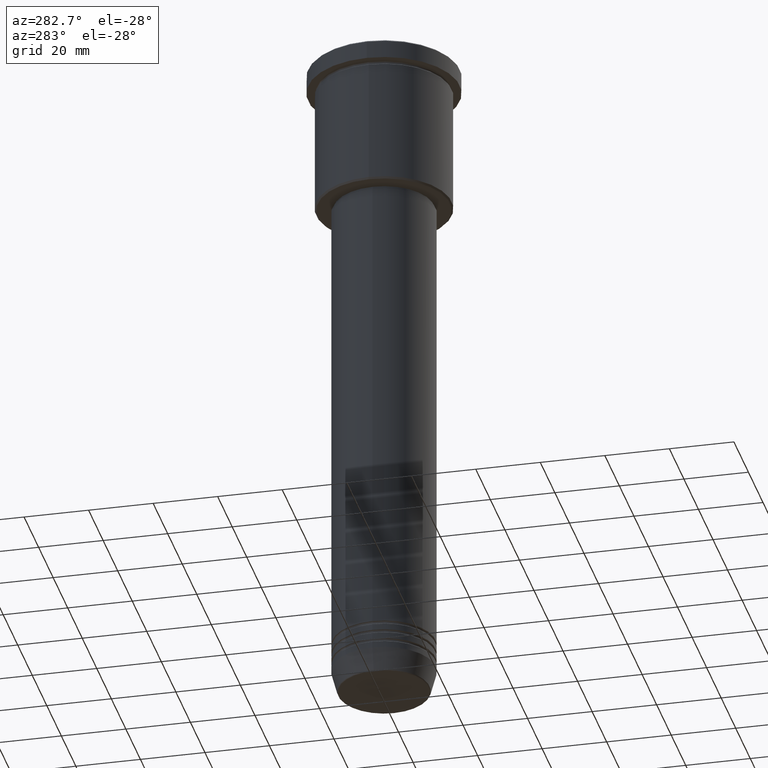
[diagram: clean part render]
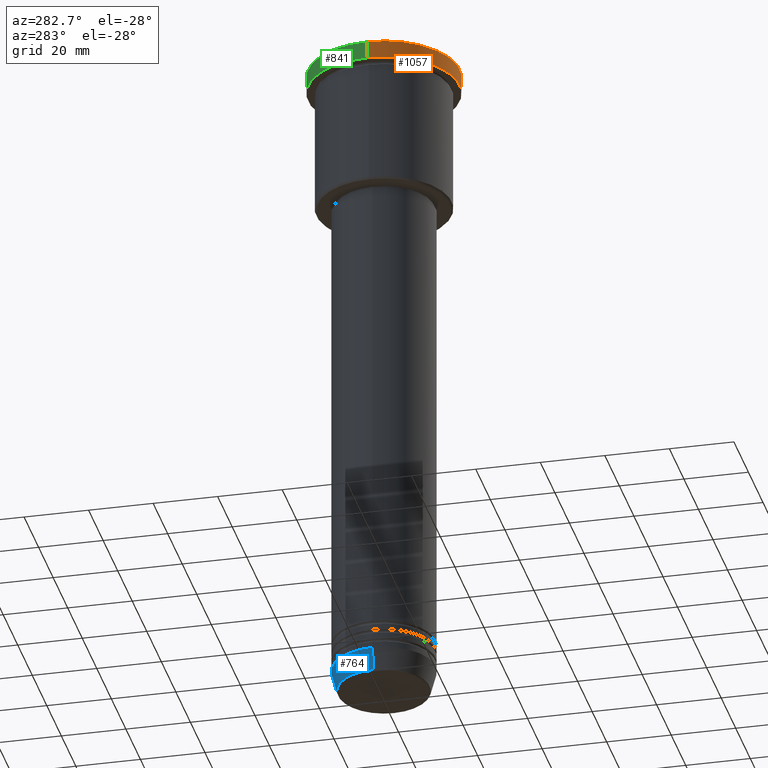
[diagram: same view with three faces highlighted in distinct colors, each labeled with its STEP entity id]
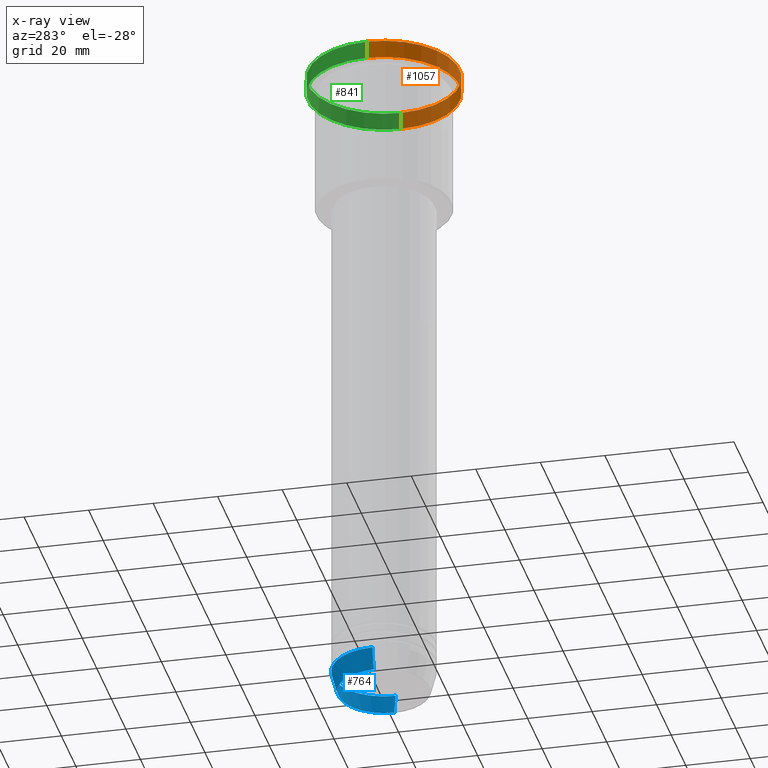
[diagram: x-ray of the same camera — body ghosted, the three highlighted faces saturated]
A machine part, auxiliary view with three faces highlighted in distinct colors.
The next image is the same camera in x-ray (body ghosted, the three faces saturated) — at least one of them is partly hidden behind the body in this view.
Their STEP definitions:

[orange] entity #1057 — the highlighted cylindrical surface (partial cylindrical patch) has radius 23.5 mm, axis along (-0, -0, 1).
#41 = DIRECTION ( 'NONE',  ( 0.000000000000000000, 0.000000000000000000, -1.000000000000000000 ) ) ;
#78 = DIRECTION ( 'NONE',  ( -0.000000000000000000, -0.000000000000000000, 1.000000000000000000 ) ) ;
#95 = CARTESIAN_POINT ( 'NONE',  ( 0.000000000000000000, 0.000000000000000000, -5.999999999999994671 ) ) ;
#121 = VECTOR ( 'NONE', #978, 1000.000000000000000 ) ;
#160 = CARTESIAN_POINT ( 'NONE',  ( 23.50000000000000000, 0.000000000000000000, -0.5000000000000004441 ) ) ;
#196 = AXIS2_PLACEMENT_3D ( 'NONE', #528, #78, #1181 ) ;
#224 = VERTEX_POINT ( 'NONE', #160 ) ;
#237 = CARTESIAN_POINT ( 'NONE',  ( -23.50000000000000000, 2.877919977996280320E-15, -0.5000000000000004441 ) ) ;
#267 = VERTEX_POINT ( 'NONE', #237 ) ;
#337 = CYLINDRICAL_SURFACE ( 'NONE', #196, 23.50000000000000000 ) ;
#343 = CIRCLE ( 'NONE', #494, 23.50000000000000000 ) ;
#352 = CARTESIAN_POINT ( 'NONE',  ( -23.50000000000000000, 2.877919977996280320E-15, 0.000000000000000000 ) ) ;
#410 = CARTESIAN_POINT ( 'NONE',  ( 23.50000000000000000, 0.000000000000000000, -5.999999999999994671 ) ) ;
#418 = VECTOR ( 'NONE', #537, 1000.000000000000000 ) ;
#494 = AXIS2_PLACEMENT_3D ( 'NONE', #856, #41, #1131 ) ;
#528 = CARTESIAN_POINT ( 'NONE',  ( 0.000000000000000000, 0.000000000000000000, 0.000000000000000000 ) ) ;
#537 = DIRECTION ( 'NONE',  ( -0.000000000000000000, -0.000000000000000000, 1.000000000000000000 ) ) ;
#601 = VERTEX_POINT ( 'NONE', #410 ) ;
#606 = LINE ( 'NONE', #352, #121 ) ;
#612 = EDGE_LOOP ( 'NONE', ( #709, #812, #917, #1107 ) ) ;
#623 = FACE_OUTER_BOUND ( 'NONE', #612, .T. ) ;
#652 = CIRCLE ( 'NONE', #954, 23.50000000000000000 ) ;
#677 = EDGE_CURVE ( 'NONE', #1139, #267, #606, .T. ) ;
#709 = ORIENTED_EDGE ( 'NONE', *, *, #677, .F. ) ;
#713 = LINE ( 'NONE', #720, #418 ) ;
#720 = CARTESIAN_POINT ( 'NONE',  ( 23.50000000000000000, 0.000000000000000000, 0.000000000000000000 ) ) ;
#812 = ORIENTED_EDGE ( 'NONE', *, *, #848, .T. ) ;
#819 = DIRECTION ( 'NONE',  ( -0.000000000000000000, -0.000000000000000000, 1.000000000000000000 ) ) ;
#848 = EDGE_CURVE ( 'NONE', #1139, #601, #652, .T. ) ;
#856 = CARTESIAN_POINT ( 'NONE',  ( 0.000000000000000000, 0.000000000000000000, -0.5000000000000004441 ) ) ;
#915 = EDGE_CURVE ( 'NONE', #224, #267, #343, .T. ) ;
#917 = ORIENTED_EDGE ( 'NONE', *, *, #1045, .T. ) ;
#918 = DIRECTION ( 'NONE',  ( 1.000000000000000000, 0.000000000000000000, 0.000000000000000000 ) ) ;
#954 = AXIS2_PLACEMENT_3D ( 'NONE', #95, #819, #918 ) ;
#978 = DIRECTION ( 'NONE',  ( -0.000000000000000000, -0.000000000000000000, 1.000000000000000000 ) ) ;
#1045 = EDGE_CURVE ( 'NONE', #601, #224, #713, .T. ) ;
#1057 = ADVANCED_FACE ( 'NONE', ( #623 ), #337, .T. ) ;
#1070 = CARTESIAN_POINT ( 'NONE',  ( -23.50000000000000000, 2.877919977996280320E-15, -5.999999999999994671 ) ) ;
#1107 = ORIENTED_EDGE ( 'NONE', *, *, #915, .T. ) ;
#1131 = DIRECTION ( 'NONE',  ( 1.000000000000000000, 0.000000000000000000, 0.000000000000000000 ) ) ;
#1139 = VERTEX_POINT ( 'NONE', #1070 ) ;
#1181 = DIRECTION ( 'NONE',  ( 1.000000000000000000, 0.000000000000000000, 0.000000000000000000 ) ) ;

[blue] entity #764 — the highlighted conical surface has half-angle 15 deg.
#8 = VERTEX_POINT ( 'NONE', #829 ) ;
#21 = DIRECTION ( 'NONE',  ( 1.000000000000000000, 0.000000000000000000, 0.000000000000000000 ) ) ;
#43 = VERTEX_POINT ( 'NONE', #556 ) ;
#162 = DIRECTION ( 'NONE',  ( -0.2588190451025209615, 3.169619151431767406E-17, 0.9659258262890682012 ) ) ;
#175 = AXIS2_PLACEMENT_3D ( 'NONE', #1099, #351, #553 ) ;
#263 = DIRECTION ( 'NONE',  ( 1.000000000000000000, 0.000000000000000000, 0.000000000000000000 ) ) ;
#264 = VECTOR ( 'NONE', #162, 1000.000000000000000 ) ;
#274 = CARTESIAN_POINT ( 'NONE',  ( 16.00000000000000000, 0.000000000000000000, -204.0000000000000284 ) ) ;
#293 = LINE ( 'NONE', #274, #654 ) ;
#332 = EDGE_LOOP ( 'NONE', ( #925, #643, #1037, #501 ) ) ;
#340 = CARTESIAN_POINT ( 'NONE',  ( 14.22365507213720193, 0.000000000000000000, -210.6294095225512706 ) ) ;
#351 = DIRECTION ( 'NONE',  ( -0.000000000000000000, -0.000000000000000000, 1.000000000000000000 ) ) ;
#398 = CONICAL_SURFACE ( 'NONE', #806, 16.00000000000000000, 0.2617993877991496299 ) ;
#414 = VERTEX_POINT ( 'NONE', #340 ) ;
#417 = AXIS2_PLACEMENT_3D ( 'NONE', #466, #844, #21 ) ;
#466 = CARTESIAN_POINT ( 'NONE',  ( 0.000000000000000000, 0.000000000000000000, -204.0000000000000284 ) ) ;
#492 = CIRCLE ( 'NONE', #175, 14.22365507213720193 ) ;
#501 = ORIENTED_EDGE ( 'NONE', *, *, #1038, .F. ) ;
#553 = DIRECTION ( 'NONE',  ( 1.000000000000000000, 0.000000000000000000, 0.000000000000000000 ) ) ;
#556 = CARTESIAN_POINT ( 'NONE',  ( 16.00000000000000000, 0.000000000000000000, -204.0000000000000284 ) ) ;
#643 = ORIENTED_EDGE ( 'NONE', *, *, #963, .T. ) ;
#647 = DIRECTION ( 'NONE',  ( 0.2588190451025209615, 0.000000000000000000, 0.9659258262890682012 ) ) ;
#654 = VECTOR ( 'NONE', #647, 1000.000000000000000 ) ;
#725 = CARTESIAN_POINT ( 'NONE',  ( 0.000000000000000000, 0.000000000000000000, -204.0000000000000284 ) ) ;
#764 = ADVANCED_FACE ( 'NONE', ( #1157 ), #398, .T. ) ;
#806 = AXIS2_PLACEMENT_3D ( 'NONE', #725, #1084, #263 ) ;
#829 = CARTESIAN_POINT ( 'NONE',  ( -14.22365507213720193, 1.850665122131324126E-15, -210.6294095225512706 ) ) ;
#834 = EDGE_CURVE ( 'NONE', #414, #8, #492, .T. ) ;
#844 = DIRECTION ( 'NONE',  ( -0.000000000000000000, -0.000000000000000000, 1.000000000000000000 ) ) ;
#895 = EDGE_CURVE ( 'NONE', #43, #965, #1141, .T. ) ;
#925 = ORIENTED_EDGE ( 'NONE', *, *, #834, .T. ) ;
#963 = EDGE_CURVE ( 'NONE', #8, #965, #1145, .T. ) ;
#965 = VERTEX_POINT ( 'NONE', #1168 ) ;
#1037 = ORIENTED_EDGE ( 'NONE', *, *, #895, .F. ) ;
#1038 = EDGE_CURVE ( 'NONE', #414, #43, #293, .T. ) ;
#1084 = DIRECTION ( 'NONE',  ( -0.000000000000000000, -0.000000000000000000, 1.000000000000000000 ) ) ;
#1099 = CARTESIAN_POINT ( 'NONE',  ( 0.000000000000000000, 0.000000000000000000, -210.6294095225512706 ) ) ;
#1141 = CIRCLE ( 'NONE', #417, 16.00000000000000000 ) ;
#1145 = LINE ( 'NONE', #1158, #264 ) ;
#1157 = FACE_OUTER_BOUND ( 'NONE', #332, .T. ) ;
#1158 = CARTESIAN_POINT ( 'NONE',  ( -16.00000000000000000, 1.959434878635765131E-15, -204.0000000000000284 ) ) ;
#1168 = CARTESIAN_POINT ( 'NONE',  ( -16.00000000000000000, 1.959434878635765131E-15, -204.0000000000000284 ) ) ;

[green] entity #841 — the highlighted cylindrical surface (partial cylindrical patch) has radius 23.5 mm, axis along (-0, -0, 1).
#121 = VECTOR ( 'NONE', #978, 1000.000000000000000 ) ;
#160 = CARTESIAN_POINT ( 'NONE',  ( 23.50000000000000000, 0.000000000000000000, -0.5000000000000004441 ) ) ;
#177 = DIRECTION ( 'NONE',  ( 1.000000000000000000, 0.000000000000000000, 0.000000000000000000 ) ) ;
#190 = EDGE_CURVE ( 'NONE', #601, #1139, #863, .T. ) ;
#224 = VERTEX_POINT ( 'NONE', #160 ) ;
#237 = CARTESIAN_POINT ( 'NONE',  ( -23.50000000000000000, 2.877919977996280320E-15, -0.5000000000000004441 ) ) ;
#241 = CARTESIAN_POINT ( 'NONE',  ( 0.000000000000000000, 0.000000000000000000, -5.999999999999994671 ) ) ;
#267 = VERTEX_POINT ( 'NONE', #237 ) ;
#281 = AXIS2_PLACEMENT_3D ( 'NONE', #451, #718, #177 ) ;
#352 = CARTESIAN_POINT ( 'NONE',  ( -23.50000000000000000, 2.877919977996280320E-15, 0.000000000000000000 ) ) ;
#359 = CARTESIAN_POINT ( 'NONE',  ( 0.000000000000000000, 0.000000000000000000, -0.5000000000000004441 ) ) ;
#378 = AXIS2_PLACEMENT_3D ( 'NONE', #241, #503, #1071 ) ;
#403 = ORIENTED_EDGE ( 'NONE', *, *, #677, .T. ) ;
#410 = CARTESIAN_POINT ( 'NONE',  ( 23.50000000000000000, 0.000000000000000000, -5.999999999999994671 ) ) ;
#418 = VECTOR ( 'NONE', #537, 1000.000000000000000 ) ;
#451 = CARTESIAN_POINT ( 'NONE',  ( 0.000000000000000000, 0.000000000000000000, 0.000000000000000000 ) ) ;
#503 = DIRECTION ( 'NONE',  ( -0.000000000000000000, -0.000000000000000000, 1.000000000000000000 ) ) ;
#517 = EDGE_CURVE ( 'NONE', #267, #224, #649, .T. ) ;
#519 = ORIENTED_EDGE ( 'NONE', *, *, #190, .T. ) ;
#537 = DIRECTION ( 'NONE',  ( -0.000000000000000000, -0.000000000000000000, 1.000000000000000000 ) ) ;
#548 = CYLINDRICAL_SURFACE ( 'NONE', #281, 23.50000000000000000 ) ;
#601 = VERTEX_POINT ( 'NONE', #410 ) ;
#606 = LINE ( 'NONE', #352, #121 ) ;
#627 = ORIENTED_EDGE ( 'NONE', *, *, #1045, .F. ) ;
#649 = CIRCLE ( 'NONE', #1122, 23.50000000000000000 ) ;
#677 = EDGE_CURVE ( 'NONE', #1139, #267, #606, .T. ) ;
#713 = LINE ( 'NONE', #720, #418 ) ;
#718 = DIRECTION ( 'NONE',  ( -0.000000000000000000, -0.000000000000000000, 1.000000000000000000 ) ) ;
#720 = CARTESIAN_POINT ( 'NONE',  ( 23.50000000000000000, 0.000000000000000000, 0.000000000000000000 ) ) ;
#730 = DIRECTION ( 'NONE',  ( 0.000000000000000000, 0.000000000000000000, -1.000000000000000000 ) ) ;
#763 = ORIENTED_EDGE ( 'NONE', *, *, #517, .T. ) ;
#841 = ADVANCED_FACE ( 'NONE', ( #1085 ), #548, .T. ) ;
#863 = CIRCLE ( 'NONE', #378, 23.50000000000000000 ) ;
#978 = DIRECTION ( 'NONE',  ( -0.000000000000000000, -0.000000000000000000, 1.000000000000000000 ) ) ;
#1045 = EDGE_CURVE ( 'NONE', #601, #224, #713, .T. ) ;
#1070 = CARTESIAN_POINT ( 'NONE',  ( -23.50000000000000000, 2.877919977996280320E-15, -5.999999999999994671 ) ) ;
#1071 = DIRECTION ( 'NONE',  ( 1.000000000000000000, 0.000000000000000000, 0.000000000000000000 ) ) ;
#1085 = FACE_OUTER_BOUND ( 'NONE', #1154, .T. ) ;
#1100 = DIRECTION ( 'NONE',  ( 1.000000000000000000, 0.000000000000000000, 0.000000000000000000 ) ) ;
#1122 = AXIS2_PLACEMENT_3D ( 'NONE', #359, #730, #1100 ) ;
#1139 = VERTEX_POINT ( 'NONE', #1070 ) ;
#1154 = EDGE_LOOP ( 'NONE', ( #519, #403, #763, #627 ) ) ;